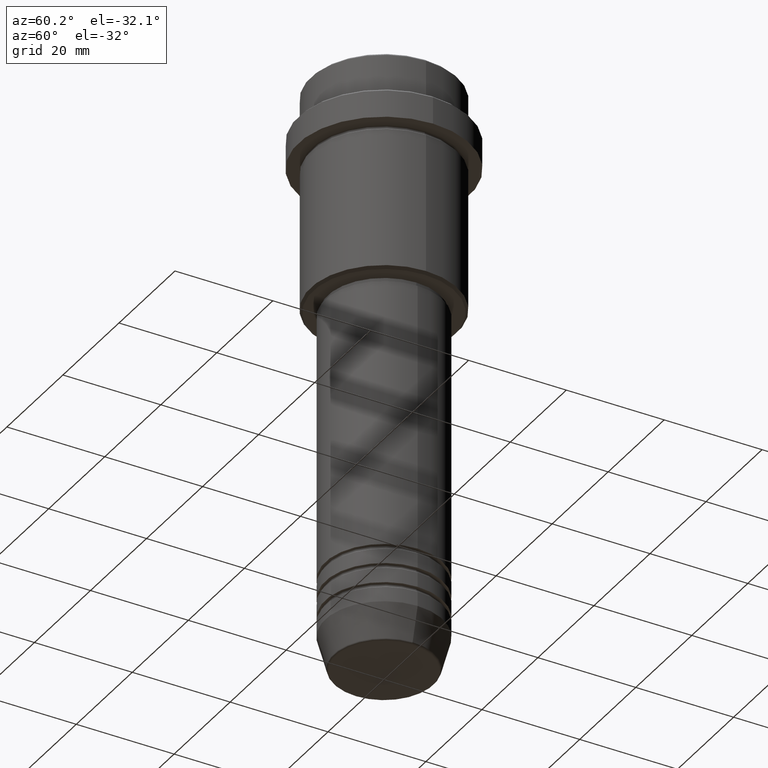
[diagram: clean part render]
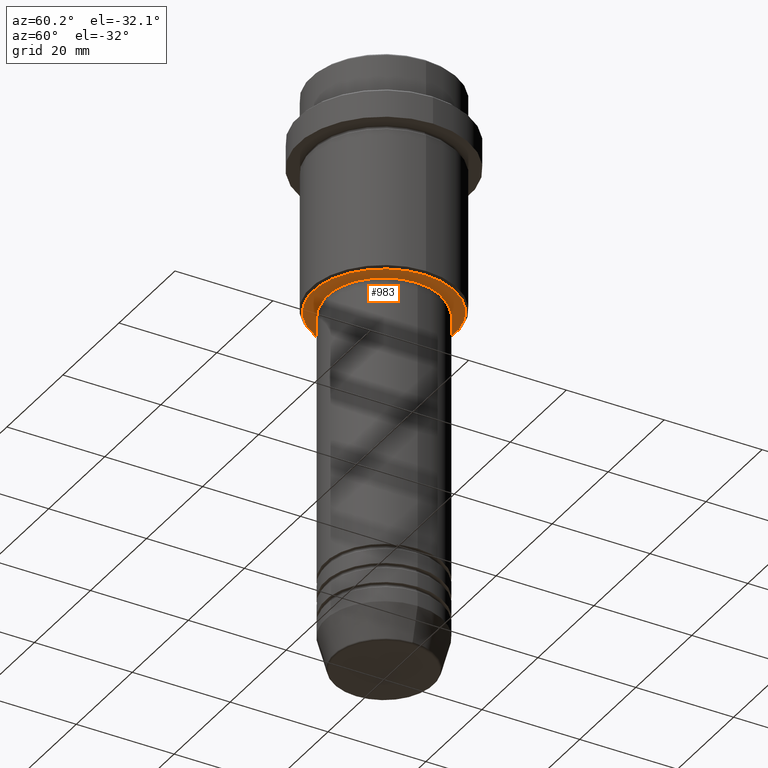
[diagram: same view with one face highlighted and labeled with its STEP entity id]
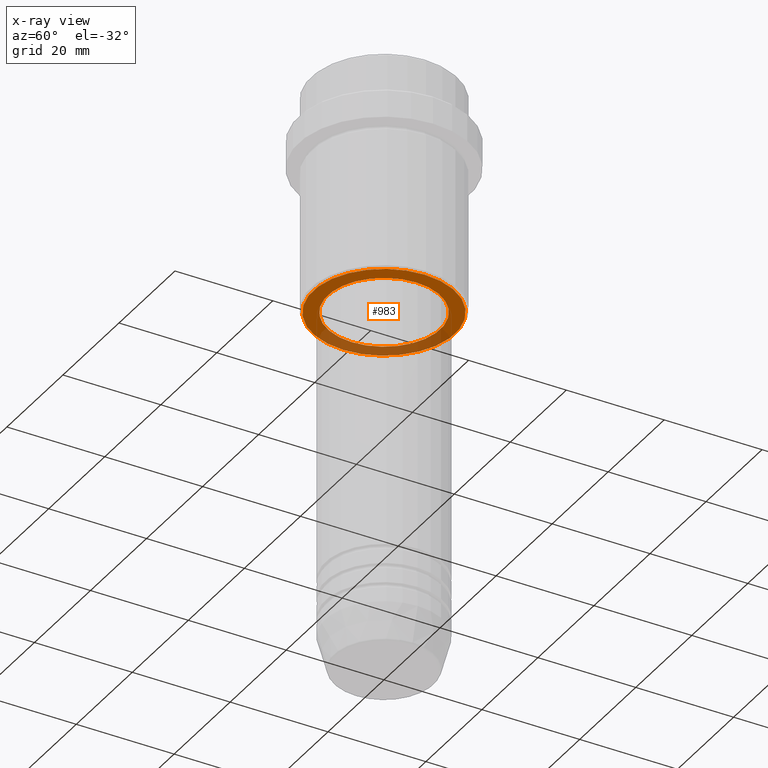
[diagram: x-ray of the same camera — body ghosted, the highlighted face saturated]
A machine part, auxiliary view. The second image highlights one B-rep face of the part: STEP entity #983.
The next image is the same camera in x-ray: the body ghosted, the highlighted face saturated — about 32% of this face is hidden behind the body in this view.
In plain terms, the highlighted planar face has unit normal (0, 0, -1).
Its self-contained STEP definition (entity closure, byte-faithful):
#3 = DIRECTION ( 'NONE',  ( -1.000000000000000000, 0.000000000000000000, 0.000000000000000000 ) ) ;
#17 = ORIENTED_EDGE ( 'NONE', *, *, #1123, .T. ) ;
#66 = DIRECTION ( 'NONE',  ( 0.000000000000000000, 0.000000000000000000, -1.000000000000000000 ) ) ;
#104 = CARTESIAN_POINT ( 'NONE',  ( 0.000000000000000000, 0.000000000000000000, -44.99999999999999289 ) ) ;
#202 = DIRECTION ( 'NONE',  ( -0.000000000000000000, -0.000000000000000000, 1.000000000000000000 ) ) ;
#211 = AXIS2_PLACEMENT_3D ( 'NONE', #868, #1088, #220 ) ;
#212 = VERTEX_POINT ( 'NONE', #1084 ) ;
#214 = EDGE_CURVE ( 'NONE', #819, #212, #1334, .T. ) ;
#220 = DIRECTION ( 'NONE',  ( -1.000000000000000000, 0.000000000000000000, 0.000000000000000000 ) ) ;
#370 = PLANE ( 'NONE',  #1025 ) ;
#378 = EDGE_LOOP ( 'NONE', ( #555, #407 ) ) ;
#407 = ORIENTED_EDGE ( 'NONE', *, *, #1103, .T. ) ;
#435 = CARTESIAN_POINT ( 'NONE',  ( 11.49999999999999467, 0.000000000000000000, -44.99999999999999289 ) ) ;
#456 = EDGE_LOOP ( 'NONE', ( #1340, #17 ) ) ;
#504 = DIRECTION ( 'NONE',  ( -1.000000000000000000, 0.000000000000000000, -0.000000000000000000 ) ) ;
#555 = ORIENTED_EDGE ( 'NONE', *, *, #1171, .T. ) ;
#642 = DIRECTION ( 'NONE',  ( 1.000000000000000000, 0.000000000000000000, 0.000000000000000000 ) ) ;
#692 = FACE_BOUND ( 'NONE', #456, .T. ) ;
#771 = AXIS2_PLACEMENT_3D ( 'NONE', #104, #851, #642 ) ;
#794 = CIRCLE ( 'NONE', #1319, 14.50000000000001066 ) ;
#819 = VERTEX_POINT ( 'NONE', #435 ) ;
#848 = CARTESIAN_POINT ( 'NONE',  ( 0.000000000000000000, 0.000000000000000000, -44.99999999999999289 ) ) ;
#851 = DIRECTION ( 'NONE',  ( -0.000000000000000000, -0.000000000000000000, 1.000000000000000000 ) ) ;
#868 = CARTESIAN_POINT ( 'NONE',  ( 0.000000000000000000, 0.000000000000000000, -45.00000000000000000 ) ) ;
#880 = AXIS2_PLACEMENT_3D ( 'NONE', #848, #202, #966 ) ;
#955 = CIRCLE ( 'NONE', #211, 14.50000000000001066 ) ;
#966 = DIRECTION ( 'NONE',  ( 1.000000000000000000, 0.000000000000000000, 0.000000000000000000 ) ) ;
#983 = ADVANCED_FACE ( 'NONE', ( #1341, #692 ), #370, .T. ) ;
#988 = CARTESIAN_POINT ( 'NONE',  ( 0.000000000000000000, 0.000000000000000000, -45.00000000000000000 ) ) ;
#1025 = AXIS2_PLACEMENT_3D ( 'NONE', #1264, #66, #504 ) ;
#1043 = CIRCLE ( 'NONE', #771, 11.49999999999999467 ) ;
#1084 = CARTESIAN_POINT ( 'NONE',  ( -11.49999999999999467, 1.408343819019455781E-15, -44.99999999999999289 ) ) ;
#1088 = DIRECTION ( 'NONE',  ( 0.000000000000000000, 0.000000000000000000, -1.000000000000000000 ) ) ;
#1101 = VERTEX_POINT ( 'NONE', #1198 ) ;
#1103 = EDGE_CURVE ( 'NONE', #1101, #1127, #955, .T. ) ;
#1123 = EDGE_CURVE ( 'NONE', #212, #819, #1043, .T. ) ;
#1127 = VERTEX_POINT ( 'NONE', #1295 ) ;
#1171 = EDGE_CURVE ( 'NONE', #1127, #1101, #794, .T. ) ;
#1198 = CARTESIAN_POINT ( 'NONE',  ( -14.50000000000001066, 1.806354028742346591E-15, -45.00000000000000000 ) ) ;
#1264 = CARTESIAN_POINT ( 'NONE',  ( 0.000000000000000000, 15.00000000000000000, -45.00000000000000000 ) ) ;
#1295 = CARTESIAN_POINT ( 'NONE',  ( 14.50000000000001066, 0.000000000000000000, -45.00000000000000000 ) ) ;
#1319 = AXIS2_PLACEMENT_3D ( 'NONE', #988, #1414, #3 ) ;
#1334 = CIRCLE ( 'NONE', #880, 11.49999999999999467 ) ;
#1340 = ORIENTED_EDGE ( 'NONE', *, *, #214, .T. ) ;
#1341 = FACE_OUTER_BOUND ( 'NONE', #378, .T. ) ;
#1414 = DIRECTION ( 'NONE',  ( 0.000000000000000000, 0.000000000000000000, -1.000000000000000000 ) ) ;